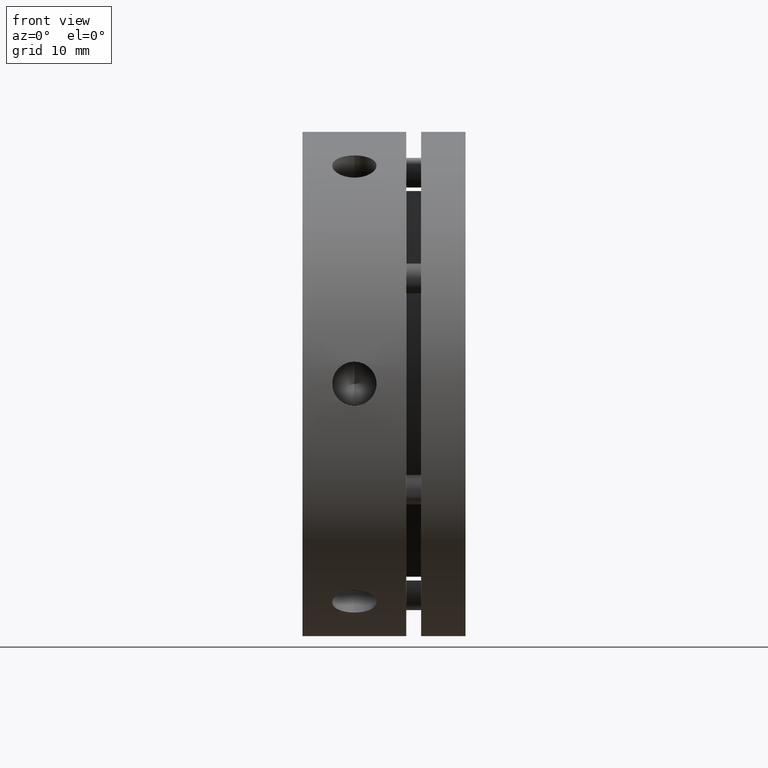
[diagram: clean part render]
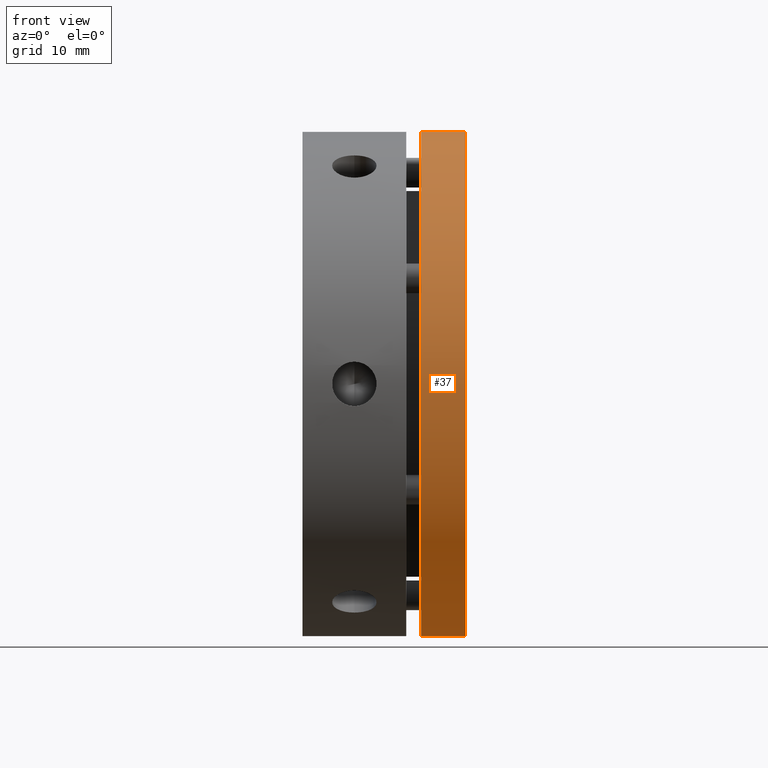
[diagram: same view with one face highlighted and labeled with its STEP entity id]
A machine part, front view. The second image highlights one B-rep face of the part: STEP entity #37.
In plain terms, the highlighted cylindrical surface (partial cylindrical patch) has radius 34 mm, axis along (1, 0, 0).
Its self-contained STEP definition (entity closure, byte-faithful):
#37 = ADVANCED_FACE ( 'NONE', ( #219 ), #228, .T. ) ;
#219 = FACE_OUTER_BOUND ( 'NONE', #4523, .T. ) ;
#228 = CYLINDRICAL_SURFACE ( 'NONE', #1908, 34.00000000000000000 ) ;
#423 = LINE ( 'NONE', #2504, #429 ) ;
#429 = VECTOR ( 'NONE', #2501, 1000.000000000000000 ) ;
#444 = LINE ( 'NONE', #2524, #449 ) ;
#449 = VECTOR ( 'NONE', #2529, 1000.000000000000000 ) ;
#639 = CIRCLE ( 'NONE', #1697, 34.00000000000000000 ) ;
#651 = CIRCLE ( 'NONE', #1704, 34.00000000000000000 ) ;
#1046 = EDGE_CURVE ( 'NONE', #1896, #1894, #423, .T. ) ;
#1056 = EDGE_CURVE ( 'NONE', #1882, #1879, #444, .T. ) ;
#1351 = DIRECTION ( 'NONE',  ( 0.0000000000000000000, 0.0000000000000000000, -1.000000000000000000 ) ) ;
#1353 = DIRECTION ( 'NONE',  ( 1.000000000000000000, 0.0000000000000000000, 0.0000000000000000000 ) ) ;
#1355 = CARTESIAN_POINT ( 'NONE',  ( 10.99999999999999300, 0.0000000000000000000, 0.0000000000000000000 ) ) ;
#1697 = AXIS2_PLACEMENT_3D ( 'NONE', #3115, #3116, #3117 ) ;
#1704 = AXIS2_PLACEMENT_3D ( 'NONE', #3136, #3137, #3138 ) ;
#1879 = VERTEX_POINT ( 'NONE', #2907 ) ;
#1882 = VERTEX_POINT ( 'NONE', #2910 ) ;
#1894 = VERTEX_POINT ( 'NONE', #2922 ) ;
#1896 = VERTEX_POINT ( 'NONE', #2924 ) ;
#1908 = AXIS2_PLACEMENT_3D ( 'NONE', #1355, #1353, #1351 ) ;
#2285 = ORIENTED_EDGE ( 'NONE', *, *, #1056, .T. ) ;
#2286 = ORIENTED_EDGE ( 'NONE', *, *, #2355, .T. ) ;
#2295 = ORIENTED_EDGE ( 'NONE', *, *, #1046, .F. ) ;
#2296 = ORIENTED_EDGE ( 'NONE', *, *, #2362, .T. ) ;
#2355 = EDGE_CURVE ( 'NONE', #1879, #1894, #639, .T. ) ;
#2362 = EDGE_CURVE ( 'NONE', #1896, #1882, #651, .T. ) ;
#2501 = DIRECTION ( 'NONE',  ( 1.000000000000000000, 0.0000000000000000000, 0.0000000000000000000 ) ) ;
#2504 = CARTESIAN_POINT ( 'NONE',  ( 10.99999999999999300, 4.163799117101000600E-015, 34.00000000000000000 ) ) ;
#2524 = CARTESIAN_POINT ( 'NONE',  ( 10.99999999999999300, 0.0000000000000000000, -34.00000000000000000 ) ) ;
#2529 = DIRECTION ( 'NONE',  ( 1.000000000000000000, 0.0000000000000000000, 0.0000000000000000000 ) ) ;
#2907 = CARTESIAN_POINT ( 'NONE',  ( 21.99999999999999300, 0.0000000000000000000, -34.00000000000000000 ) ) ;
#2910 = CARTESIAN_POINT ( 'NONE',  ( 15.99999999999999600, 0.0000000000000000000, -34.00000000000000000 ) ) ;
#2922 = CARTESIAN_POINT ( 'NONE',  ( 21.99999999999999300, 4.163799117101000600E-015, 34.00000000000000000 ) ) ;
#2924 = CARTESIAN_POINT ( 'NONE',  ( 15.99999999999999600, 4.163799117101000600E-015, 34.00000000000000000 ) ) ;
#3115 = CARTESIAN_POINT ( 'NONE',  ( 21.99999999999999300, 0.0000000000000000000, 0.0000000000000000000 ) ) ;
#3116 = DIRECTION ( 'NONE',  ( -1.000000000000000000, -0.0000000000000000000, -0.0000000000000000000 ) ) ;
#3117 = DIRECTION ( 'NONE',  ( 0.0000000000000000000, 0.0000000000000000000, -1.000000000000000000 ) ) ;
#3136 = CARTESIAN_POINT ( 'NONE',  ( 15.99999999999999600, 0.0000000000000000000, 0.0000000000000000000 ) ) ;
#3137 = DIRECTION ( 'NONE',  ( 1.000000000000000000, 0.0000000000000000000, 0.0000000000000000000 ) ) ;
#3138 = DIRECTION ( 'NONE',  ( 0.0000000000000000000, 0.0000000000000000000, -1.000000000000000000 ) ) ;
#4523 = EDGE_LOOP ( 'NONE', ( #2295, #2296, #2285, #2286 ) ) ;